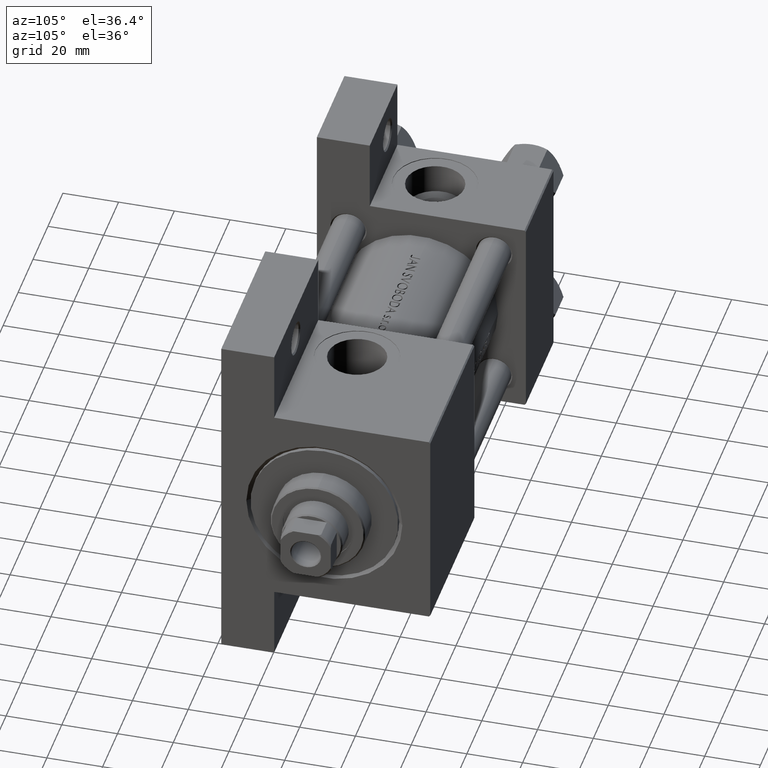
[diagram: clean part render]
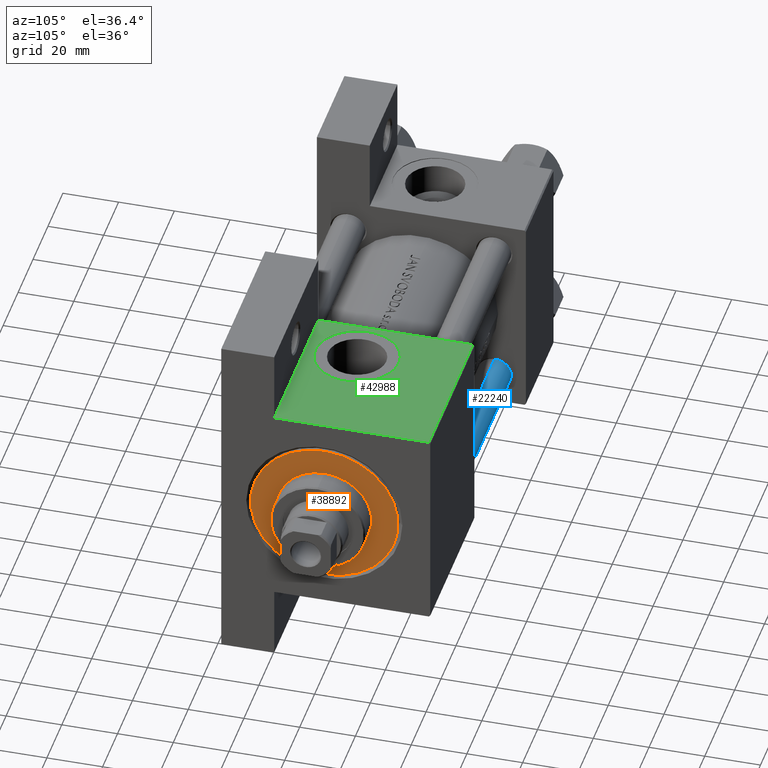
[diagram: same view with three faces highlighted in distinct colors, each labeled with its STEP entity id]
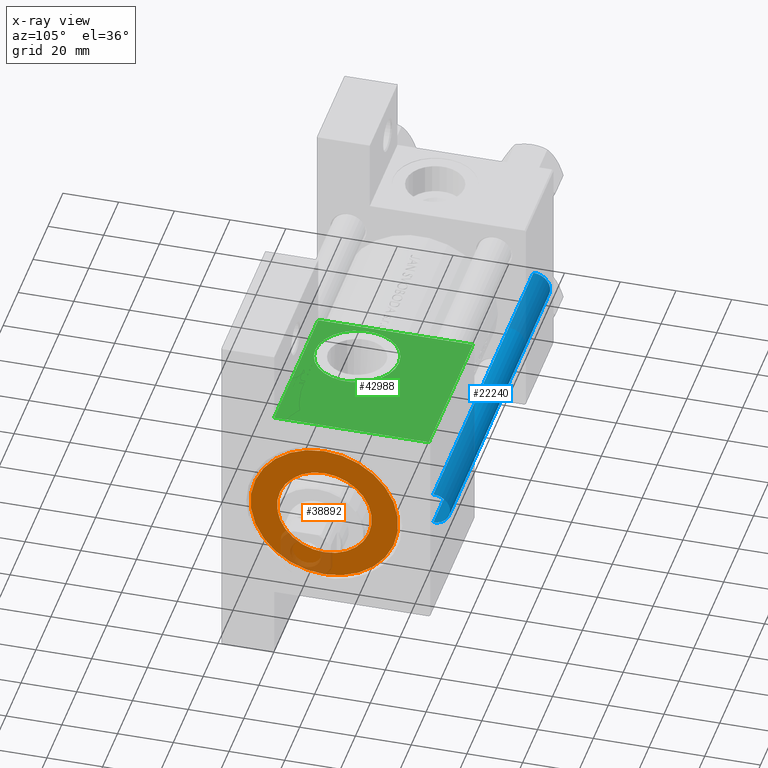
[diagram: x-ray of the same camera — body ghosted, the three highlighted faces saturated]
A machine part, auxiliary view with three faces highlighted in distinct colors.
The next image is the same camera in x-ray (body ghosted, the three faces saturated) — at least one of them is partly hidden behind the body in this view.
Their STEP definitions:

[orange] entity #38892 — the highlighted planar face has unit normal (1, 0, 0).
#1958 = CARTESIAN_POINT ( 'NONE',  ( 0.000000000000000000, 0.000000000000000000, 28.69999999999999929 ) ) ;
#2042 = PLANE ( 'NONE',  #26492 ) ;
#2286 = DIRECTION ( 'NONE',  ( 1.000000000000000000, 0.000000000000000000, -0.000000000000000000 ) ) ;
#3208 = AXIS2_PLACEMENT_3D ( 'NONE', #13617, #28798, #9874 ) ;
#3342 = VERTEX_POINT ( 'NONE', #39128 ) ;
#3531 = EDGE_CURVE ( 'NONE', #11773, #35283, #20276, .T. ) ;
#3811 = EDGE_CURVE ( 'NONE', #6263, #3342, #6734, .T. ) ;
#6263 = VERTEX_POINT ( 'NONE', #7562 ) ;
#6734 = CIRCLE ( 'NONE', #21039, 17.00000000000000000 ) ;
#7562 = CARTESIAN_POINT ( 'NONE',  ( 17.00000000000000000, 2.081899558550500280E-15, 28.69999999999999929 ) ) ;
#9874 = DIRECTION ( 'NONE',  ( 1.000000000000000000, 0.000000000000000000, 0.000000000000000000 ) ) ;
#11773 = VERTEX_POINT ( 'NONE', #38779 ) ;
#13617 = CARTESIAN_POINT ( 'NONE',  ( 0.000000000000000000, 0.000000000000000000, 28.69999999999999929 ) ) ;
#15110 = CIRCLE ( 'NONE', #3208, 17.00000000000000000 ) ;
#17340 = CARTESIAN_POINT ( 'NONE',  ( -26.50000000000000355, 0.000000000000000000, 28.69999999999999929 ) ) ;
#20276 = CIRCLE ( 'NONE', #34567, 26.50000000000000355 ) ;
#20409 = DIRECTION ( 'NONE',  ( 0.000000000000000000, 0.000000000000000000, 1.000000000000000000 ) ) ;
#21039 = AXIS2_PLACEMENT_3D ( 'NONE', #1958, #20409, #43537 ) ;
#21692 = FACE_BOUND ( 'NONE', #28037, .T. ) ;
#25597 = EDGE_CURVE ( 'NONE', #3342, #6263, #15110, .T. ) ;
#25662 = CARTESIAN_POINT ( 'NONE',  ( 0.000000000000000000, 0.000000000000000000, 28.69999999999999929 ) ) ;
#25755 = AXIS2_PLACEMENT_3D ( 'NONE', #45203, #30975, #41458 ) ;
#26492 = AXIS2_PLACEMENT_3D ( 'NONE', #25662, #40861, #2286 ) ;
#28037 = EDGE_LOOP ( 'NONE', ( #37585, #38554 ) ) ;
#28798 = DIRECTION ( 'NONE',  ( 0.000000000000000000, 0.000000000000000000, 1.000000000000000000 ) ) ;
#29855 = CARTESIAN_POINT ( 'NONE',  ( 0.000000000000000000, 0.000000000000000000, 28.69999999999999929 ) ) ;
#30766 = EDGE_CURVE ( 'NONE', #35283, #11773, #47241, .T. ) ;
#30975 = DIRECTION ( 'NONE',  ( 0.000000000000000000, 0.000000000000000000, 1.000000000000000000 ) ) ;
#32139 = ORIENTED_EDGE ( 'NONE', *, *, #30766, .T. ) ;
#34567 = AXIS2_PLACEMENT_3D ( 'NONE', #29855, #37588, #36859 ) ;
#35283 = VERTEX_POINT ( 'NONE', #17340 ) ;
#36859 = DIRECTION ( 'NONE',  ( 1.000000000000000000, 0.000000000000000000, 0.000000000000000000 ) ) ;
#37585 = ORIENTED_EDGE ( 'NONE', *, *, #25597, .F. ) ;
#37588 = DIRECTION ( 'NONE',  ( 0.000000000000000000, 0.000000000000000000, 1.000000000000000000 ) ) ;
#38038 = ORIENTED_EDGE ( 'NONE', *, *, #3531, .T. ) ;
#38554 = ORIENTED_EDGE ( 'NONE', *, *, #3811, .F. ) ;
#38779 = CARTESIAN_POINT ( 'NONE',  ( 26.50000000000000355, 3.245314017740486554E-15, 28.69999999999999929 ) ) ;
#38892 = ADVANCED_FACE ( 'NONE', ( #21692, #48583 ), #2042, .T. ) ;
#39128 = CARTESIAN_POINT ( 'NONE',  ( -17.00000000000000000, 0.000000000000000000, 28.69999999999999929 ) ) ;
#39811 = EDGE_LOOP ( 'NONE', ( #32139, #38038 ) ) ;
#40861 = DIRECTION ( 'NONE',  ( 0.000000000000000000, 0.000000000000000000, 1.000000000000000000 ) ) ;
#41458 = DIRECTION ( 'NONE',  ( 1.000000000000000000, 0.000000000000000000, 0.000000000000000000 ) ) ;
#43537 = DIRECTION ( 'NONE',  ( 1.000000000000000000, 0.000000000000000000, 0.000000000000000000 ) ) ;
#45203 = CARTESIAN_POINT ( 'NONE',  ( 0.000000000000000000, 0.000000000000000000, 28.69999999999999929 ) ) ;
#47241 = CIRCLE ( 'NONE', #25755, 26.50000000000000355 ) ;
#48583 = FACE_OUTER_BOUND ( 'NONE', #39811, .T. ) ;

[blue] entity #22240 — the highlighted cylindrical surface (edge-blend (fillet) strip) has radius 6 mm, axis along (1, -0, -0).
#1357 = LINE ( 'NONE', #16528, #40857 ) ;
#1678 = VERTEX_POINT ( 'NONE', #41872 ) ;
#3216 = DIRECTION ( 'NONE',  ( -0.000000000000000000, -0.000000000000000000, 1.000000000000000000 ) ) ;
#4129 = VERTEX_POINT ( 'NONE', #25288 ) ;
#4555 = CYLINDRICAL_SURFACE ( 'NONE', #47625, 6.000000000000000888 ) ;
#4713 = FACE_OUTER_BOUND ( 'NONE', #44249, .T. ) ;
#5590 = DIRECTION ( 'NONE',  ( 1.000000000000000000, 0.000000000000000000, 0.000000000000000000 ) ) ;
#5771 = VECTOR ( 'NONE', #25063, 1000.000000000000000 ) ;
#8356 = AXIS2_PLACEMENT_3D ( 'NONE', #25873, #3216, #14663 ) ;
#9297 = EDGE_CURVE ( 'NONE', #4129, #1678, #12345, .T. ) ;
#11423 = DIRECTION ( 'NONE',  ( -1.000000000000000000, 0.000000000000000000, 0.000000000000000000 ) ) ;
#12345 = CIRCLE ( 'NONE', #8356, 6.000000000000000888 ) ;
#14663 = DIRECTION ( 'NONE',  ( 1.000000000000000000, 0.000000000000000000, 0.000000000000000000 ) ) ;
#15980 = ORIENTED_EDGE ( 'NONE', *, *, #9297, .T. ) ;
#16528 = CARTESIAN_POINT ( 'NONE',  ( -6.000000000000000888, 0.000000000000000000, 135.0000000000000000 ) ) ;
#17587 = VERTEX_POINT ( 'NONE', #45992 ) ;
#21281 = DIRECTION ( 'NONE',  ( 0.000000000000000000, 0.000000000000000000, -1.000000000000000000 ) ) ;
#22240 = ADVANCED_FACE ( 'NONE', ( #4713 ), #4555, .T. ) ;
#23139 = DIRECTION ( 'NONE',  ( -0.000000000000000000, -0.000000000000000000, -1.000000000000000000 ) ) ;
#24390 = ORIENTED_EDGE ( 'NONE', *, *, #41419, .F. ) ;
#25063 = DIRECTION ( 'NONE',  ( -0.000000000000000000, -0.000000000000000000, -1.000000000000000000 ) ) ;
#25288 = CARTESIAN_POINT ( 'NONE',  ( 6.000000000000000888, 7.347880794884120722E-16, 0.5000000000000281997 ) ) ;
#25556 = LINE ( 'NONE', #48720, #5771 ) ;
#25873 = CARTESIAN_POINT ( 'NONE',  ( 0.000000000000000000, 0.000000000000000000, 0.5000000000000281997 ) ) ;
#27159 = AXIS2_PLACEMENT_3D ( 'NONE', #40204, #21281, #5590 ) ;
#27973 = VERTEX_POINT ( 'NONE', #42332 ) ;
#28839 = EDGE_CURVE ( 'NONE', #17587, #27973, #31928, .T. ) ;
#30847 = CARTESIAN_POINT ( 'NONE',  ( 0.000000000000000000, 0.000000000000000000, 135.0000000000000000 ) ) ;
#31928 = CIRCLE ( 'NONE', #27159, 6.000000000000000888 ) ;
#34586 = EDGE_CURVE ( 'NONE', #27973, #4129, #25556, .T. ) ;
#36813 = ORIENTED_EDGE ( 'NONE', *, *, #34586, .T. ) ;
#40204 = CARTESIAN_POINT ( 'NONE',  ( 0.000000000000000000, 0.000000000000000000, 134.5000000000000000 ) ) ;
#40857 = VECTOR ( 'NONE', #47159, 1000.000000000000000 ) ;
#41419 = EDGE_CURVE ( 'NONE', #17587, #1678, #1357, .T. ) ;
#41872 = CARTESIAN_POINT ( 'NONE',  ( -6.000000000000000888, 0.000000000000000000, 0.5000000000000281997 ) ) ;
#42332 = CARTESIAN_POINT ( 'NONE',  ( 6.000000000000000888, 7.347880794884120722E-16, 134.5000000000000000 ) ) ;
#44249 = EDGE_LOOP ( 'NONE', ( #45074, #36813, #15980, #24390 ) ) ;
#45074 = ORIENTED_EDGE ( 'NONE', *, *, #28839, .T. ) ;
#45992 = CARTESIAN_POINT ( 'NONE',  ( -6.000000000000000888, 0.000000000000000000, 134.5000000000000000 ) ) ;
#47159 = DIRECTION ( 'NONE',  ( -0.000000000000000000, -0.000000000000000000, -1.000000000000000000 ) ) ;
#47625 = AXIS2_PLACEMENT_3D ( 'NONE', #30847, #23139, #11423 ) ;
#48720 = CARTESIAN_POINT ( 'NONE',  ( 6.000000000000000888, 7.347880794884120722E-16, 135.0000000000000000 ) ) ;

[green] entity #42988 — the highlighted planar face has unit normal (0, -0, -1).
#1095 = DIRECTION ( 'NONE',  ( 0.000000000000000000, -9.251858538542972814E-17, -1.000000000000000000 ) ) ;
#1798 = EDGE_CURVE ( 'NONE', #35083, #48205, #43583, .T. ) ;
#3125 = PLANE ( 'NONE',  #25782 ) ;
#3547 = VECTOR ( 'NONE', #42856, 1000.000000000000000 ) ;
#3668 = VERTEX_POINT ( 'NONE', #3973 ) ;
#3695 = CARTESIAN_POINT ( 'NONE',  ( 123.0000000000000142, -37.50000000000000000, 3.469446951953615767E-15 ) ) ;
#3973 = CARTESIAN_POINT ( 'NONE',  ( 106.0000000000000142, -37.50000000000000000, -18.50000000000000000 ) ) ;
#4089 = VERTEX_POINT ( 'NONE', #44962 ) ;
#5493 = CARTESIAN_POINT ( 'NONE',  ( 165.0000000000000000, -37.50000000000000000, 37.49999999999997868 ) ) ;
#6742 = CARTESIAN_POINT ( 'NONE',  ( 123.0000000000000142, -37.50000000000000000, 3.469446951953615767E-15 ) ) ;
#7084 = FACE_OUTER_BOUND ( 'NONE', #24104, .T. ) ;
#7900 = DIRECTION ( 'NONE',  ( 0.000000000000000000, -1.000000000000000000, -8.673617379884036705E-17 ) ) ;
#8548 = CARTESIAN_POINT ( 'NONE',  ( 106.0000000000000142, -37.50000000000000000, 37.49999999999997868 ) ) ;
#9016 = ORIENTED_EDGE ( 'NONE', *, *, #41348, .T. ) ;
#10380 = VERTEX_POINT ( 'NONE', #12416 ) ;
#10821 = DIRECTION ( 'NONE',  ( 0.000000000000000000, 1.000000000000000000, -9.251858538542972814E-17 ) ) ;
#11133 = DIRECTION ( 'NONE',  ( 0.000000000000000000, 0.000000000000000000, -1.000000000000000000 ) ) ;
#11802 = AXIS2_PLACEMENT_3D ( 'NONE', #3695, #7900, #11133 ) ;
#12416 = CARTESIAN_POINT ( 'NONE',  ( 123.0000000000000142, -37.50000000000000000, -15.00000000000000888 ) ) ;
#16106 = AXIS2_PLACEMENT_3D ( 'NONE', #6742, #33394, #40623 ) ;
#19785 = EDGE_CURVE ( 'NONE', #35083, #4089, #20175, .T. ) ;
#20064 = EDGE_CURVE ( 'NONE', #21788, #10380, #46806, .T. ) ;
#20175 = LINE ( 'NONE', #42836, #32567 ) ;
#20495 = CARTESIAN_POINT ( 'NONE',  ( 165.0000000000000000, -37.50000000000000000, 36.99999999999995026 ) ) ;
#21507 = ORIENTED_EDGE ( 'NONE', *, *, #1798, .F. ) ;
#21788 = VERTEX_POINT ( 'NONE', #35209 ) ;
#22286 = ORIENTED_EDGE ( 'NONE', *, *, #20064, .F. ) ;
#22288 = CARTESIAN_POINT ( 'NONE',  ( 165.0000000000000000, -37.50000000000000000, 37.49999999999997868 ) ) ;
#23224 = VECTOR ( 'NONE', #44601, 1000.000000000000000 ) ;
#24104 = EDGE_LOOP ( 'NONE', ( #21507, #46647, #9016, #45088 ) ) ;
#25782 = AXIS2_PLACEMENT_3D ( 'NONE', #22288, #10821, #30232 ) ;
#28158 = VECTOR ( 'NONE', #1095, 1000.000000000000000 ) ;
#30232 = DIRECTION ( 'NONE',  ( 0.000000000000000000, 9.251858538542972814E-17, 1.000000000000000000 ) ) ;
#31267 = EDGE_LOOP ( 'NONE', ( #41869, #22286 ) ) ;
#31950 = CARTESIAN_POINT ( 'NONE',  ( 165.0000000000000000, -37.50000000000000711, -18.50000000000000355 ) ) ;
#32567 = VECTOR ( 'NONE', #39090, 1000.000000000000000 ) ;
#33394 = DIRECTION ( 'NONE',  ( 0.000000000000000000, -1.000000000000000000, -8.673617379884036705E-17 ) ) ;
#33418 = EDGE_CURVE ( 'NONE', #3668, #48205, #41114, .T. ) ;
#34093 = EDGE_CURVE ( 'NONE', #10380, #21788, #37586, .T. ) ;
#35083 = VERTEX_POINT ( 'NONE', #20495 ) ;
#35209 = CARTESIAN_POINT ( 'NONE',  ( 123.0000000000000142, -37.50000000000000000, 15.00000000000001421 ) ) ;
#37586 = CIRCLE ( 'NONE', #16106, 15.00000000000001243 ) ;
#39090 = DIRECTION ( 'NONE',  ( -1.000000000000000000, 0.000000000000000000, 0.000000000000000000 ) ) ;
#40374 = CARTESIAN_POINT ( 'NONE',  ( 106.0000000000000142, -37.50000000000000000, -18.50000000000000000 ) ) ;
#40623 = DIRECTION ( 'NONE',  ( 0.000000000000000000, 0.000000000000000000, -1.000000000000000000 ) ) ;
#41114 = LINE ( 'NONE', #40374, #23224 ) ;
#41348 = EDGE_CURVE ( 'NONE', #4089, #3668, #45677, .T. ) ;
#41869 = ORIENTED_EDGE ( 'NONE', *, *, #34093, .F. ) ;
#42836 = CARTESIAN_POINT ( 'NONE',  ( 165.0000000000000000, -37.50000000000000000, 36.99999999999995026 ) ) ;
#42856 = DIRECTION ( 'NONE',  ( 0.000000000000000000, -9.251858538542972814E-17, -1.000000000000000000 ) ) ;
#42988 = ADVANCED_FACE ( 'NONE', ( #48455, #7084 ), #3125, .F. ) ;
#43583 = LINE ( 'NONE', #5493, #3547 ) ;
#44601 = DIRECTION ( 'NONE',  ( 1.000000000000000000, -1.176083712526649442E-16, 0.000000000000000000 ) ) ;
#44962 = CARTESIAN_POINT ( 'NONE',  ( 106.0000000000000142, -37.50000000000000000, 36.99999999999995026 ) ) ;
#45088 = ORIENTED_EDGE ( 'NONE', *, *, #33418, .T. ) ;
#45677 = LINE ( 'NONE', #8548, #28158 ) ;
#46647 = ORIENTED_EDGE ( 'NONE', *, *, #19785, .T. ) ;
#46806 = CIRCLE ( 'NONE', #11802, 15.00000000000001243 ) ;
#48205 = VERTEX_POINT ( 'NONE', #31950 ) ;
#48455 = FACE_BOUND ( 'NONE', #31267, .T. ) ;